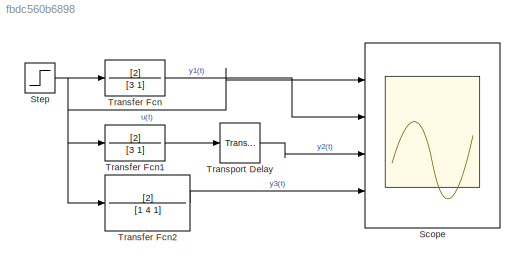
MODEL slx_fbdc560b6898
KIND model
CONFIG AbsTol = auto
CONFIG EnableMultiTasking = off
CONFIG FixedStep = 0.001
CONFIG MaxStep = auto
CONFIG MinStep = auto
CONFIG RelTol = 1e-3
CONFIG SampleTimeConstraint = Unconstrained
CONFIG SolverName = ode4
CONFIG StartTime = 0.0
CONFIG StopTime = 30
BLOCK [Scope] Scope
  Floating = off
  NumInputPorts = 4
  Ports = [4]
  ScopeSpecificationString = Simulink.scopes.TimeScopeBlockCfg('CurrentConfiguration', extmgr.ConfigurationSet(extmgr.Configuration('Core','General UI',true),extmgr.Configuration('Core','Source UI',true),extmgr.Configuration('Sources','WiredSimulink',true),extmgr.Configuration('Visuals','Time Domain',true,'SerializedDisplays',{struct('MinYLimReal','-2.49989','MaxYLimReal','22.49898','YLabelReal','','MinYLimMag','0.00000','Max...<+1423ch>
BLOCK [Step] Step
  After = 10
  SampleTime = 0
  Time = 0
BLOCK [TransferFcn] Transfer Fcn
  Denominator = [3 1]
  Numerator = [2]
BLOCK [TransferFcn] Transfer Fcn1
  Denominator = [3 1]
  Numerator = [2]
BLOCK [TransferFcn] Transfer Fcn2
  Denominator = [1 4 1]
  Numerator = [2]
BLOCK [TransportDelay] Transport Delay
  DelayTime = 4
  Ports = [1, 1]
NET Step:1 -> Scope:1, Transfer Fcn1:1, Transfer Fcn2:1, Transfer Fcn:1
LINE Transfer Fcn1:1 -> Transport Delay:1
LINE Transfer Fcn2:1 -> Scope:4
LINE Transfer Fcn:1 -> Scope:2
LINE Transport Delay:1 -> Scope:3
note: NET lines group one-source signal fan-out (src -> all destinations, sorted); 1:1 wires keep LINE
